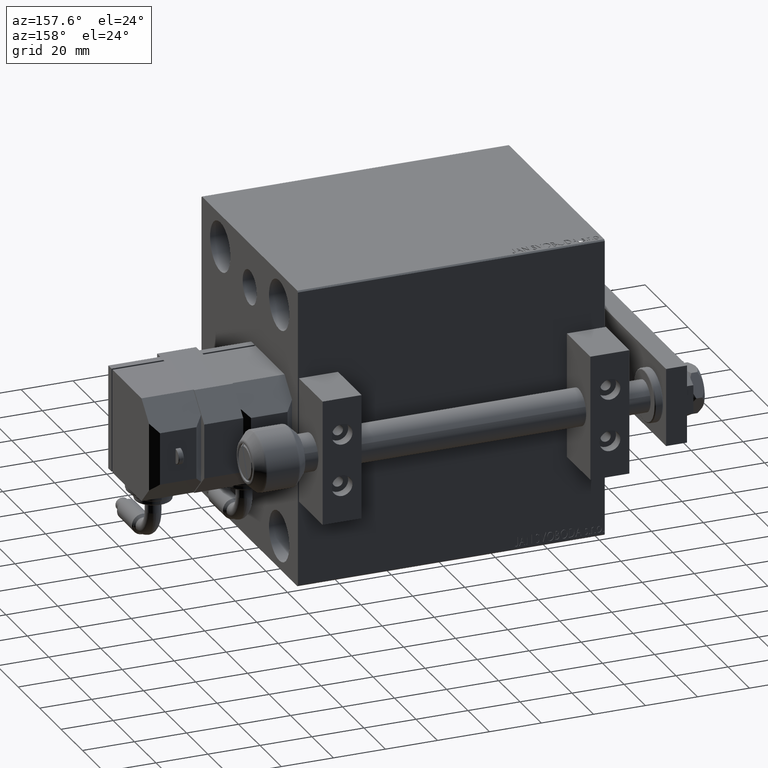
[diagram: clean part render]
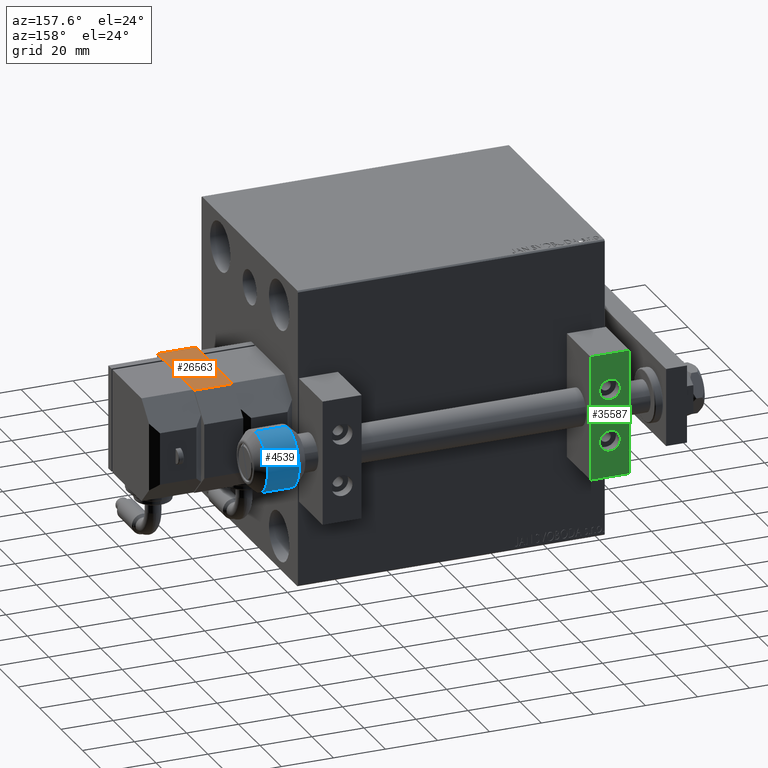
[diagram: same view with three faces highlighted in distinct colors, each labeled with its STEP entity id]
A machine part, auxiliary view with three faces highlighted in distinct colors.
Their STEP definitions:

[orange] entity #26563 — the highlighted planar face has unit normal (0, 0, -1).
#816 = LINE ( 'NONE', #32534, #36806 ) ;
#1686 = PLANE ( 'NONE',  #22866 ) ;
#4760 = ORIENTED_EDGE ( 'NONE', *, *, #44140, .F. ) ;
#4771 = EDGE_CURVE ( 'NONE', #18954, #8994, #816, .T. ) ;
#5657 = VERTEX_POINT ( 'NONE', #8930 ) ;
#6310 = DIRECTION ( 'NONE',  ( 1.000000000000000000, 1.577021341797097560E-16, -0.000000000000000000 ) ) ;
#8434 = VECTOR ( 'NONE', #34156, 1000.000000000000000 ) ;
#8930 = CARTESIAN_POINT ( 'NONE',  ( -19.99999999999999289, -22.00000000000000000, 0.000000000000000000 ) ) ;
#8994 = VERTEX_POINT ( 'NONE', #23813 ) ;
#10936 = DIRECTION ( 'NONE',  ( -1.577021341797097560E-16, 1.000000000000000000, 0.000000000000000000 ) ) ;
#11289 = ORIENTED_EDGE ( 'NONE', *, *, #11636, .F. ) ;
#11636 = EDGE_CURVE ( 'NONE', #34536, #5657, #49904, .T. ) ;
#13859 = CARTESIAN_POINT ( 'NONE',  ( -20.00000000000000000, 12.50000000000000533, 15.00000000000000000 ) ) ;
#14969 = EDGE_LOOP ( 'NONE', ( #4760, #39232, #21929, #11289 ) ) ;
#18954 = VERTEX_POINT ( 'NONE', #13859 ) ;
#21929 = ORIENTED_EDGE ( 'NONE', *, *, #22587, .T. ) ;
#22587 = EDGE_CURVE ( 'NONE', #8994, #5657, #35585, .T. ) ;
#22866 = AXIS2_PLACEMENT_3D ( 'NONE', #23046, #6310, #10936 ) ;
#23046 = CARTESIAN_POINT ( 'NONE',  ( -20.00000000000000000, 22.00000000000000000, 15.00000000000000000 ) ) ;
#23813 = CARTESIAN_POINT ( 'NONE',  ( -20.00000000000000000, 12.50000000000000533, 0.000000000000000000 ) ) ;
#26563 = ADVANCED_FACE ( 'NONE', ( #28512 ), #1686, .F. ) ;
#26801 = CARTESIAN_POINT ( 'NONE',  ( -19.99999999999999289, -22.00000000000000000, 15.00000000000000000 ) ) ;
#28512 = FACE_OUTER_BOUND ( 'NONE', #14969, .T. ) ;
#29789 = CARTESIAN_POINT ( 'NONE',  ( -19.99999999999999289, -22.00000000000000000, 15.00000000000000000 ) ) ;
#31716 = CARTESIAN_POINT ( 'NONE',  ( -20.00000000000000000, 22.00000000000000000, 0.000000000000000000 ) ) ;
#32534 = CARTESIAN_POINT ( 'NONE',  ( -20.00000000000000000, 12.50000000000000533, 15.00000000000000000 ) ) ;
#34156 = DIRECTION ( 'NONE',  ( 1.577021341797097560E-16, -1.000000000000000000, 0.000000000000000000 ) ) ;
#34306 = VECTOR ( 'NONE', #47447, 1000.000000000000000 ) ;
#34536 = VERTEX_POINT ( 'NONE', #26801 ) ;
#35585 = LINE ( 'NONE', #31716, #34306 ) ;
#36806 = VECTOR ( 'NONE', #40789, 1000.000000000000000 ) ;
#39232 = ORIENTED_EDGE ( 'NONE', *, *, #4771, .T. ) ;
#40789 = DIRECTION ( 'NONE',  ( -0.000000000000000000, 0.000000000000000000, -1.000000000000000000 ) ) ;
#41879 = VECTOR ( 'NONE', #46279, 1000.000000000000000 ) ;
#42651 = LINE ( 'NONE', #42891, #8434 ) ;
#42891 = CARTESIAN_POINT ( 'NONE',  ( -20.00000000000000000, 22.00000000000000000, 15.00000000000000000 ) ) ;
#44140 = EDGE_CURVE ( 'NONE', #18954, #34536, #42651, .T. ) ;
#46279 = DIRECTION ( 'NONE',  ( -0.000000000000000000, -0.000000000000000000, -1.000000000000000000 ) ) ;
#47447 = DIRECTION ( 'NONE',  ( 1.577021341797097560E-16, -1.000000000000000000, 0.000000000000000000 ) ) ;
#49904 = LINE ( 'NONE', #29789, #41879 ) ;

[blue] entity #4539 — the highlighted cylindrical surface (edge-blend (fillet) strip) has radius 11.5 mm, axis along (1, 0, 0).
#977 = ORIENTED_EDGE ( 'NONE', *, *, #3086, .F. ) ;
#1890 = CYLINDRICAL_SURFACE ( 'NONE', #7942, 11.49999999999999822 ) ;
#3086 = EDGE_CURVE ( 'NONE', #28663, #48748, #38697, .T. ) ;
#4539 = ADVANCED_FACE ( 'NONE', ( #22496 ), #1890, .T. ) ;
#7942 = AXIS2_PLACEMENT_3D ( 'NONE', #29998, #26617, #30512 ) ;
#8708 = CARTESIAN_POINT ( 'NONE',  ( 0.000000000000000000, 0.000000000000000000, 3.914213562373095812 ) ) ;
#8905 = CIRCLE ( 'NONE', #39405, 11.49999999999999822 ) ;
#8972 = DIRECTION ( 'NONE',  ( 0.000000000000000000, 0.000000000000000000, -1.000000000000000000 ) ) ;
#12257 = VERTEX_POINT ( 'NONE', #19049 ) ;
#12355 = EDGE_CURVE ( 'NONE', #28663, #40044, #8905, .T. ) ;
#14224 = CARTESIAN_POINT ( 'NONE',  ( -11.49999999999999822, 0.000000000000000000, 20.00000000000000000 ) ) ;
#15192 = CARTESIAN_POINT ( 'NONE',  ( 11.49999999999999822, 1.408343819019455979E-15, 20.00000000000000000 ) ) ;
#15769 = VECTOR ( 'NONE', #26586, 1000.000000000000000 ) ;
#16186 = DIRECTION ( 'NONE',  ( -1.000000000000000000, 0.000000000000000000, 0.000000000000000000 ) ) ;
#16449 = ORIENTED_EDGE ( 'NONE', *, *, #12355, .T. ) ;
#17116 = AXIS2_PLACEMENT_3D ( 'NONE', #8708, #43547, #16186 ) ;
#19049 = CARTESIAN_POINT ( 'NONE',  ( -11.49999999999999822, 0.000000000000000000, 3.914213562373095812 ) ) ;
#22496 = FACE_OUTER_BOUND ( 'NONE', #48373, .T. ) ;
#26586 = DIRECTION ( 'NONE',  ( -0.000000000000000000, -0.000000000000000000, -1.000000000000000000 ) ) ;
#26617 = DIRECTION ( 'NONE',  ( -0.000000000000000000, -0.000000000000000000, -1.000000000000000000 ) ) ;
#28663 = VERTEX_POINT ( 'NONE', #36449 ) ;
#29998 = CARTESIAN_POINT ( 'NONE',  ( 0.000000000000000000, 0.000000000000000000, 20.00000000000000000 ) ) ;
#30512 = DIRECTION ( 'NONE',  ( -1.000000000000000000, 0.000000000000000000, 0.000000000000000000 ) ) ;
#30709 = EDGE_CURVE ( 'NONE', #12257, #48748, #49291, .T. ) ;
#30980 = LINE ( 'NONE', #14224, #15769 ) ;
#31946 = CARTESIAN_POINT ( 'NONE',  ( 0.000000000000000000, 0.000000000000000000, 16.08578643762689708 ) ) ;
#36248 = ORIENTED_EDGE ( 'NONE', *, *, #39609, .T. ) ;
#36449 = CARTESIAN_POINT ( 'NONE',  ( 11.49999999999999822, 1.408343819019455979E-15, 16.08578643762689708 ) ) ;
#37968 = CARTESIAN_POINT ( 'NONE',  ( 11.49999999999999822, 1.408343819019455979E-15, 3.914213562373095812 ) ) ;
#38697 = LINE ( 'NONE', #15192, #41691 ) ;
#39405 = AXIS2_PLACEMENT_3D ( 'NONE', #31946, #8972, #47925 ) ;
#39609 = EDGE_CURVE ( 'NONE', #40044, #12257, #30980, .T. ) ;
#40044 = VERTEX_POINT ( 'NONE', #49968 ) ;
#41691 = VECTOR ( 'NONE', #50059, 1000.000000000000000 ) ;
#43547 = DIRECTION ( 'NONE',  ( -0.000000000000000000, -0.000000000000000000, 1.000000000000000000 ) ) ;
#46625 = ORIENTED_EDGE ( 'NONE', *, *, #30709, .T. ) ;
#47925 = DIRECTION ( 'NONE',  ( 1.000000000000000000, 0.000000000000000000, 0.000000000000000000 ) ) ;
#48373 = EDGE_LOOP ( 'NONE', ( #977, #16449, #36248, #46625 ) ) ;
#48748 = VERTEX_POINT ( 'NONE', #37968 ) ;
#49291 = CIRCLE ( 'NONE', #17116, 11.49999999999999822 ) ;
#49968 = CARTESIAN_POINT ( 'NONE',  ( -11.49999999999999822, 0.000000000000000000, 16.08578643762689708 ) ) ;
#50059 = DIRECTION ( 'NONE',  ( -0.000000000000000000, -0.000000000000000000, -1.000000000000000000 ) ) ;

[green] entity #35587 — the highlighted planar face has unit normal (0, 1, 0).
#181 = DIRECTION ( 'NONE',  ( 0.000000000000000000, -0.000000000000000000, 1.000000000000000000 ) ) ;
#200 = EDGE_CURVE ( 'NONE', #18077, #45253, #20867, .T. ) ;
#633 = AXIS2_PLACEMENT_3D ( 'NONE', #16772, #12910, #43016 ) ;
#655 = CARTESIAN_POINT ( 'NONE',  ( 7.500000000000002665, 11.00000000000000355, 6.000000000000000888 ) ) ;
#1020 = DIRECTION ( 'NONE',  ( 0.000000000000000000, 0.000000000000000000, -1.000000000000000000 ) ) ;
#1883 = DIRECTION ( 'NONE',  ( -1.000000000000000000, -0.000000000000000000, -0.000000000000000000 ) ) ;
#2212 = ORIENTED_EDGE ( 'NONE', *, *, #33806, .F. ) ;
#4284 = CARTESIAN_POINT ( 'NONE',  ( 15.00000000000000000, 11.00000000000000355, 24.00000000000000711 ) ) ;
#4881 = CARTESIAN_POINT ( 'NONE',  ( 15.00000000000000000, 11.00000000000000355, 24.00000000000000711 ) ) ;
#5809 = DIRECTION ( 'NONE',  ( 0.000000000000000000, 0.000000000000000000, 1.000000000000000000 ) ) ;
#6063 = CARTESIAN_POINT ( 'NONE',  ( 7.500000000000001776, 11.00000000000000355, 10.00000000000000178 ) ) ;
#6773 = ORIENTED_EDGE ( 'NONE', *, *, #30131, .F. ) ;
#7759 = VECTOR ( 'NONE', #1020, 1000.000000000000000 ) ;
#8206 = CARTESIAN_POINT ( 'NONE',  ( 7.500000000000001776, 11.00000000000000355, -10.00000000000000178 ) ) ;
#8820 = ORIENTED_EDGE ( 'NONE', *, *, #43030, .F. ) ;
#9409 = DIRECTION ( 'NONE',  ( 3.081487911019577365E-33, -1.000000000000000000, 4.418865812115433188E-17 ) ) ;
#9693 = CIRCLE ( 'NONE', #633, 4.000000000000000888 ) ;
#9708 = CARTESIAN_POINT ( 'NONE',  ( 0.000000000000000000, 11.00000000000000355, 24.00000000000000711 ) ) ;
#10154 = CARTESIAN_POINT ( 'NONE',  ( 0.000000000000000000, 11.00000000000000355, -23.99999999999999289 ) ) ;
#11518 = AXIS2_PLACEMENT_3D ( 'NONE', #15134, #42750, #181 ) ;
#11592 = EDGE_CURVE ( 'NONE', #25445, #41749, #16291, .T. ) ;
#11767 = DIRECTION ( 'NONE',  ( -1.000000000000000000, -0.000000000000000000, -0.000000000000000000 ) ) ;
#12889 = CARTESIAN_POINT ( 'NONE',  ( 15.00000000000000000, 11.00000000000000355, 24.00000000000000711 ) ) ;
#12910 = DIRECTION ( 'NONE',  ( 0.000000000000000000, 1.000000000000000000, -6.065466699219605527E-17 ) ) ;
#13188 = AXIS2_PLACEMENT_3D ( 'NONE', #6063, #34188, #5809 ) ;
#13232 = VERTEX_POINT ( 'NONE', #10154 ) ;
#14723 = ORIENTED_EDGE ( 'NONE', *, *, #48297, .F. ) ;
#15134 = CARTESIAN_POINT ( 'NONE',  ( 15.00000000000000000, 11.00000000000000355, 24.00000000000000711 ) ) ;
#15596 = AXIS2_PLACEMENT_3D ( 'NONE', #8206, #23929, #39686 ) ;
#15856 = VECTOR ( 'NONE', #11767, 1000.000000000000000 ) ;
#16291 = CIRCLE ( 'NONE', #31161, 4.000000000000000000 ) ;
#16772 = CARTESIAN_POINT ( 'NONE',  ( 7.500000000000001776, 11.00000000000000355, -10.00000000000000178 ) ) ;
#17156 = VECTOR ( 'NONE', #1883, 1000.000000000000000 ) ;
#17258 = EDGE_LOOP ( 'NONE', ( #2212, #6773 ) ) ;
#18042 = EDGE_LOOP ( 'NONE', ( #8820, #14723, #19460, #29294 ) ) ;
#18077 = VERTEX_POINT ( 'NONE', #12889 ) ;
#18207 = EDGE_LOOP ( 'NONE', ( #21428, #42747 ) ) ;
#19460 = ORIENTED_EDGE ( 'NONE', *, *, #200, .T. ) ;
#19466 = CARTESIAN_POINT ( 'NONE',  ( 0.000000000000000000, 11.00000000000000355, 24.00000000000000711 ) ) ;
#20174 = CARTESIAN_POINT ( 'NONE',  ( 15.00000000000000000, 11.00000000000000355, -23.99999999999999289 ) ) ;
#20867 = LINE ( 'NONE', #4881, #7759 ) ;
#21428 = ORIENTED_EDGE ( 'NONE', *, *, #34960, .T. ) ;
#23929 = DIRECTION ( 'NONE',  ( 0.000000000000000000, 1.000000000000000000, -6.065466699219605527E-17 ) ) ;
#24343 = DIRECTION ( 'NONE',  ( 0.000000000000000000, 0.000000000000000000, -1.000000000000000000 ) ) ;
#25132 = CARTESIAN_POINT ( 'NONE',  ( 7.500000000000002665, 11.00000000000000355, -14.00000000000000178 ) ) ;
#25445 = VERTEX_POINT ( 'NONE', #655 ) ;
#27008 = FACE_OUTER_BOUND ( 'NONE', #18042, .T. ) ;
#27808 = VERTEX_POINT ( 'NONE', #47534 ) ;
#28961 = CARTESIAN_POINT ( 'NONE',  ( 7.500000000000001776, 11.00000000000000355, 14.00000000000000178 ) ) ;
#29280 = DIRECTION ( 'NONE',  ( 0.000000000000000000, 0.000000000000000000, 1.000000000000000000 ) ) ;
#29294 = ORIENTED_EDGE ( 'NONE', *, *, #31569, .T. ) ;
#30131 = EDGE_CURVE ( 'NONE', #45031, #27808, #9693, .T. ) ;
#31161 = AXIS2_PLACEMENT_3D ( 'NONE', #48885, #9409, #29280 ) ;
#31569 = EDGE_CURVE ( 'NONE', #45253, #13232, #32851, .T. ) ;
#32851 = LINE ( 'NONE', #48583, #17156 ) ;
#33806 = EDGE_CURVE ( 'NONE', #27808, #45031, #38672, .T. ) ;
#34188 = DIRECTION ( 'NONE',  ( 3.081487911019577365E-33, -1.000000000000000000, 4.418865812115433188E-17 ) ) ;
#34585 = CIRCLE ( 'NONE', #13188, 4.000000000000000000 ) ;
#34960 = EDGE_CURVE ( 'NONE', #41749, #25445, #34585, .T. ) ;
#35275 = PLANE ( 'NONE',  #11518 ) ;
#35587 = ADVANCED_FACE ( 'NONE', ( #27008, #47127, #39394 ), #35275, .T. ) ;
#38672 = CIRCLE ( 'NONE', #15596, 4.000000000000000888 ) ;
#38839 = VECTOR ( 'NONE', #24343, 1000.000000000000000 ) ;
#39394 = FACE_BOUND ( 'NONE', #18207, .T. ) ;
#39635 = LINE ( 'NONE', #4284, #15856 ) ;
#39686 = DIRECTION ( 'NONE',  ( 0.000000000000000000, 0.000000000000000000, 1.000000000000000000 ) ) ;
#40100 = LINE ( 'NONE', #19466, #38839 ) ;
#41749 = VERTEX_POINT ( 'NONE', #28961 ) ;
#42747 = ORIENTED_EDGE ( 'NONE', *, *, #11592, .T. ) ;
#42750 = DIRECTION ( 'NONE',  ( -0.000000000000000000, 1.000000000000000000, 0.000000000000000000 ) ) ;
#42808 = VERTEX_POINT ( 'NONE', #9708 ) ;
#43016 = DIRECTION ( 'NONE',  ( 0.000000000000000000, 0.000000000000000000, 1.000000000000000000 ) ) ;
#43030 = EDGE_CURVE ( 'NONE', #42808, #13232, #40100, .T. ) ;
#45031 = VERTEX_POINT ( 'NONE', #25132 ) ;
#45253 = VERTEX_POINT ( 'NONE', #20174 ) ;
#47127 = FACE_BOUND ( 'NONE', #17258, .T. ) ;
#47534 = CARTESIAN_POINT ( 'NONE',  ( 7.500000000000001776, 11.00000000000000355, -6.000000000000000888 ) ) ;
#48297 = EDGE_CURVE ( 'NONE', #18077, #42808, #39635, .T. ) ;
#48583 = CARTESIAN_POINT ( 'NONE',  ( 15.00000000000000000, 11.00000000000000355, -23.99999999999999289 ) ) ;
#48885 = CARTESIAN_POINT ( 'NONE',  ( 7.500000000000001776, 11.00000000000000355, 10.00000000000000178 ) ) ;